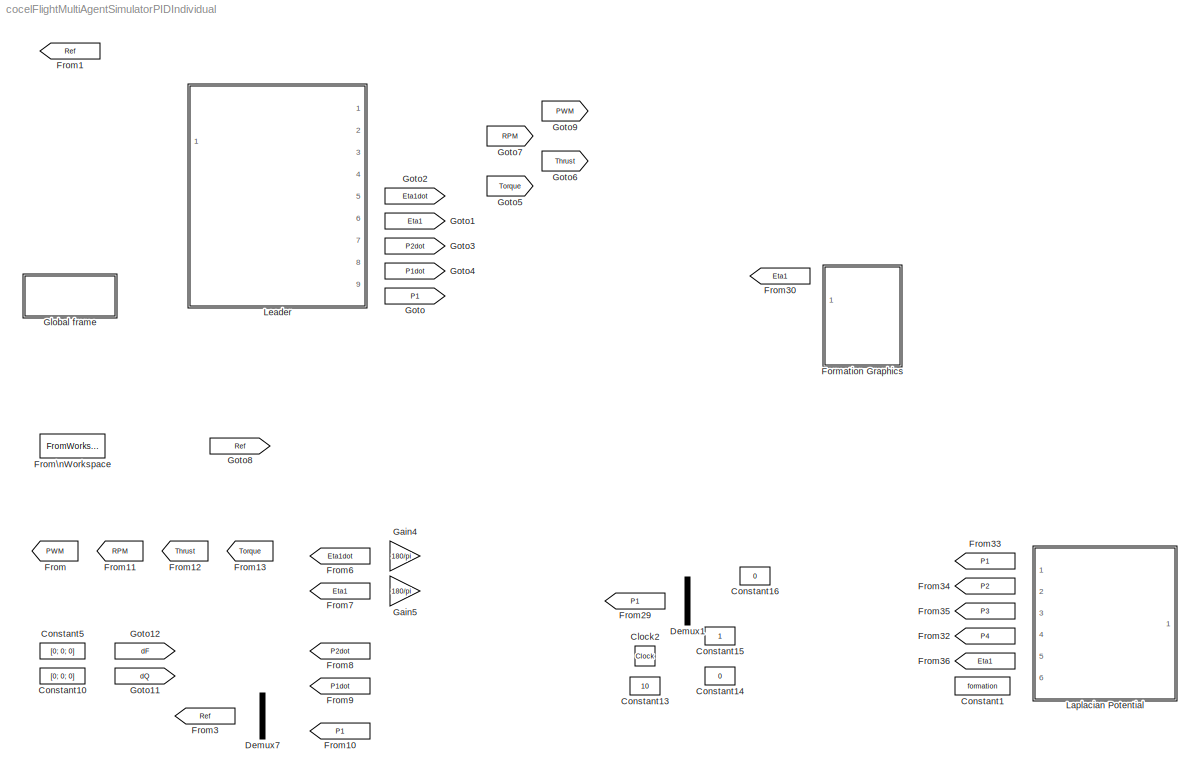
MODEL cocelFlightMultiAgentSimulatorPIDIndividual
KIND model
BLOCK [Clock] Clock2
  SID = 7185
BLOCK [Constant] Constant1
  SID = 9731
  Value = formation
BLOCK [Constant] Constant10
  SID = 2464
  Value = [0; 0; 0]
BLOCK [Constant] Constant13
  SID = 7186
  Value = 10
BLOCK [Constant] Constant14
  SID = 7187
  Value = 0
BLOCK [Constant] Constant15
  SID = 7188
BLOCK [Constant] Constant16
  SID = 7189
  Value = 0
BLOCK [Constant] Constant5
  SID = 2463
  Value = [0; 0; 0]
BLOCK [Demux] Demux1
  Outputs = 3
  Ports = [1, 3]
  SID = 7190
BLOCK [Demux] Demux7
  Ports = [1, 4]
  SID = 2465
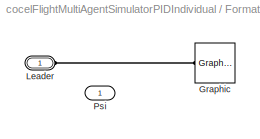
BLOCK [SubSystem] Formation Graphics
  Ports = [1, 0, 0, 0, 0, 1]
  RequestExecContextInheritance = off
  SID = 9703
BLOCK [Reference] Formation Graphics/Graphic  REF=sm_lib/Body Elements/Graphic
  GraphicAmbientColor = [0.15 0.15 0.15 1.0]
  GraphicAmbientColor_conf = compiletime
  GraphicDiffuseColor = [0.0 0.8 0.0]
  GraphicDiffuseColor_conf = compiletime
  GraphicEmissiveColor = [0.0 0.0 0.0 1.0]
  GraphicEmissiveColor_conf = compiletime
  GraphicOpacity = 0.5
  GraphicOpacity_conf = compiletime
  GraphicShininess = 75
  GraphicShininess_conf = compiletime
  GraphicSpecularColor = [0.5 0.5 0.5 1.0]
  GraphicSpecularColor_conf = compiletime
  GraphicType = Marker
  GraphicVisPropType = SimpleVisualProperties
  LogSimulationData = off
  MarkerShape = Sphere
  MarkerSize = 18
  MarkerSize_conf = compiletime
  NameLocation = top
  Ports = [0, 0, 0, 0, 0, 0, 1]
  SID = 9793
  SourceBlock = sm_lib/Body Elements/Graphic
  SourceProductBaseCode = MS
  SourceType = Graphic
BLOCK [PMIOPort] Formation Graphics/Leader
  SID = 9725
  Side = Left
BLOCK [Inport] Formation Graphics/Psi
  SID = 9704
BLOCK [From] From
  GotoTag = PWM
  NameLocation = left
  SID = 2007
BLOCK [From] From1
  GotoTag = Ref
  SID = 4326
BLOCK [From] From10
  GotoTag = P1
  SID = 428
BLOCK [From] From11
  GotoTag = RPM
  NameLocation = left
  SID = 2014
BLOCK [From] From12
  GotoTag = Thrust
  NameLocation = left
  SID = 2015
BLOCK [From] From13
  GotoTag = Torque
  NameLocation = left
  SID = 2016
BLOCK [From] From29
  GotoTag = P1
  SID = 7191
BLOCK [From] From3
  GotoTag = Ref
  SID = 3674
BLOCK [From] From30
  GotoTag = Eta1
  SID = 9729
BLOCK [From] From32
  GotoTag = P4
  SID = 9732
BLOCK [From] From33
  GotoTag = P1
  SID = 9733
BLOCK [From] From34
  GotoTag = P2
  SID = 9734
BLOCK [From] From35
  GotoTag = P3
  SID = 9735
BLOCK [From] From36
  GotoTag = Eta1
  SID = 9736
BLOCK [From] From6
  GotoTag = Eta1dot
  SID = 395
BLOCK [From] From7
  GotoTag = Eta1
  SID = 396
BLOCK [From] From8
  GotoTag = P2dot
  SID = 426
BLOCK [From] From9
  GotoTag = P1dot
  SID = 427
BLOCK [FromWorkspace] From\nWorkspace
  SID = 9743
  VariableName = filteredPath
BLOCK [Gain] Gain4
  Gain = 180/pi
  SID = 1258
BLOCK [Gain] Gain5
  Gain = 180/pi
  SID = 1259
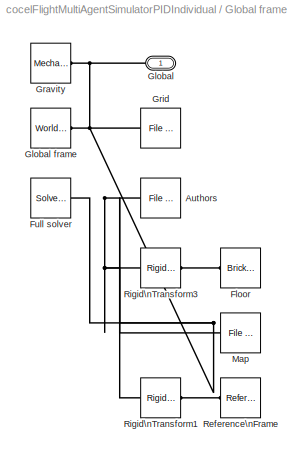
BLOCK [SubSystem] Global frame
  Ports = [0, 0, 0, 0, 0, 0, 1]
  RequestExecContextInheritance = off
  SID = 9296
BLOCK [Reference] Global frame/Authors  REF=sm_lib/Body Elements/File Solid
  BasedOnType = Density
  CenterOfMass = [0 0 0]
  CenterOfMassUnits = m
  CenterOfMass_conf = compiletime
  Density = 1000
  DensityUnits = kg/m^3
  Density_conf = compiletime
  DoExposeReferenceFrame = on
  ExportConvexHullGeometry = off
  ExtGeomFileName = graphics/Author.stl
  ExtGeomFileUnits = mm
  GraphicAmbientColor = [0.15 0.15 0.15 1.0]
  GraphicAmbientColor_conf = compiletime
  GraphicDiffuseColor = [0.8 0.0 0.4]
  GraphicDiffuseColor_conf = compiletime
  GraphicEmissiveColor = [0.0 0.0 0.0 1.0]
  GraphicEmissiveColor_conf = compiletime
  GraphicOpacity = 1.0
  GraphicOpacity_conf = compiletime
  GraphicShininess = 75
  GraphicShininess_conf = compiletime
  GraphicSpecularColor = [0.5 0.5 0.5 1.0]
  GraphicSpecularColor_conf = compiletime
  GraphicType = FromGeometry
  GraphicVisPropType = SimpleVisualProperties
  InertiaType = PointMass
  LogSimulationData = off
  MarkerShape = Sphere
  MarkerSize = 10
  MarkerSize_conf = compiletime
  Mass = 0
  MassUnits = kg
  Mass_conf = compiletime
  MomentsOfInertia = [0.001421219 0.001560811 0.002674212]
  MomentsOfInertiaUnits = kg*m^2
  MomentsOfInertia_conf = compiletime
  Ports = [0, 0, 0, 0, 0, 0, 1]
  ProductsOfInertia = [0 0 0]
  ProductsOfInertiaUnits = kg*m^2
  ProductsOfInertia_conf = compiletime
  SID = 9297
  SerializedFrames = <Frames/>
  SourceBlock = sm_lib/Body Elements/File Solid
  SourceProductBaseCode = MS
  SourceType = File Solid
  StepReaderType = HEX
  UnitType = Custom
BLOCK [Reference] Global frame/Floor  REF=sm_lib/Body Elements/Brick Solid
  BasedOnType = Density
  BrickDimensionUnits = m
  BrickDimensions = [60 60 0.01]
  BrickDimensions_conf = compiletime
  CenterOfMass = [0 0 0]
  CenterOfMassUnits = m
  CenterOfMass_conf = compiletime
  Density = 1000
  DensityUnits = kg/m^3
  Density_conf = compiletime
  DoExposeReferenceFrame = on
  ExportEntireGeometry = off
  GraphicAmbientColor = [0.15 0.15 0.15 1.0]
  GraphicAmbientColor_conf = compiletime
  GraphicDiffuseColor = [1.0 1.0 0.9]
  GraphicDiffuseColor_conf = compiletime
  GraphicEmissiveColor = [0.0 0.0 0.0 1.0]
  GraphicEmissiveColor_conf = compiletime
  GraphicOpacity = 1.0
  GraphicOpacity_conf = compiletime
  GraphicShininess = 75
  GraphicShininess_conf = compiletime
  GraphicSpecularColor = [0.5 0.5 0.5 1.0]
  GraphicSpecularColor_conf = compiletime
  GraphicType = FromGeometry
  GraphicVisPropType = SimpleVisualProperties
  InertiaType = PointMass
  LogSimulationData = off
  MarkerShape = Sphere
  MarkerSize = 10
  MarkerSize_conf = compiletime
  Mass = 0
  MassUnits = kg
  Mass_conf = compiletime
  MomentsOfInertia = [0.001421219 0.001560811 0.002674212]
  MomentsOfInertiaUnits = kg*m^2
  MomentsOfInertia_conf = compiletime
  Ports = [0, 0, 0, 0, 0, 0, 1]
  ProductsOfInertia = [0 0 0]
  ProductsOfInertiaUnits = kg*m^2
  ProductsOfInertia_conf = compiletime
  SID = 9298
  SerializedFrames = <Frames/>
  SourceBlock = sm_lib/Body Elements/Brick Solid
  SourceProductBaseCode = MS
  SourceType = Brick Solid
BLOCK [Reference] Global frame/Full solver  REF=nesl_utility/Solver\nConfiguration
  AbsTol = 1e-06
  AutomaticFiltering = on
  DelaysMemoryBudget = 1024
  DoDC = on
  DoFixedCost = off
  EnableSwitchedLinearOptims = on
  EquationFormulation = NE_TIME_EF
  FilteringTimeConstant = 0.001
  FrequencyDomain = off
  Harmonics = []
  LeftPortType = input
  LinearAlgebra = Full
  LocalSolverChoice = NE_BACKWARD_EULER_ADVANCER
  LocalSolverSampleTime = 0.001
  MaxModeIter = 2
  MaxNonlinIter = 3
  MinStep = 1e-09
  NumHomotopyIterations = 100
  PartitionMemoryBudget = 1024
  PartitionMethod = FAST
  PartitionStorageMethod = AS_NEEDED
  PhasorMode = off
  PhasorModeNumHarmonics = 1
  PhysicalDomain = network_engine_domain
  Ports = [0, 0, 0, 0, 0, 0, 1]
  Profile = off
  RTWMemSecDataConstants = Inherit from model
  RTWMemSecDataInternal = Inherit from model
  RTWMemSecDataParameters = Inherit from model
  RTWMemSecFuncExecute = Inherit from model
  RTWMemSecFuncInitTerm = Inherit from model
  RelTol = 0.001
  ResidualTolerance = 1e-09
  RevertToSquareIcSolve = off
  RightPortType = generic
  SID = 9299
  SimulateNoise = off
  SourceBlock = nesl_utility/Solver\nConfiguration
  SourceProductBaseCode = SS
  SourceType = Solver\nConfiguration
  SubClassName = solver
  ToWorkspace = off
  Tones = []
  UseCCode = off
  UseLocalSampling = off
  UseLocalSolver = off
BLOCK [PMIOPort] Global frame/Global
  SID = 9304
  Side = Right
BLOCK [Reference] Global frame/Global frame  REF=sm_lib/Frames and\nTransforms/World Frame
  LogSimulationData = off
  Ports = [0, 0, 0, 0, 0, 0, 1]
  SID = 9300
  SourceBlock = sm_lib/Frames and\nTransforms/World Frame
  SourceProductBaseCode = MS
  SourceType = World Frame
BLOCK [Reference] Global frame/Gravity  REF=sm_lib/Utilities/Mechanism\nConfiguration
  GravityUnits = m/s^2
  GravityVector = [0 0 -9.81]
  GravityVector_conf = compiletime
  LinearizationDelta = 0.001
  LogSimulationData = off
  Ports = [0, 0, 0, 0, 0, 0, 1]
  SID = 9301
  SourceBlock = sm_lib/Utilities/Mechanism\nConfiguration
  SourceProductBaseCode = MS
  SourceType = Mechanism\nConfiguration
  UniformGravity = Constant
BLOCK [Reference] Global frame/Grid  REF=sm_lib/Body Elements/File Solid
  BasedOnType = Density
  CenterOfMass = [0 0 0]
  CenterOfMassUnits = m
  CenterOfMass_conf = compiletime
  Density = 1000
  DensityUnits = kg/m^3
  Density_conf = compiletime
  DoExposeReferenceFrame = on
  ExportConvexHullGeometry = off
  ExtGeomFileName = graphics/Grid.stl
  ExtGeomFileUnits = mm
  GraphicAmbientColor = [0.15 0.15 0.15 1.0]
  GraphicAmbientColor_conf = compiletime
  GraphicDiffuseColor = [0.8 1.0 0.8]
  GraphicDiffuseColor_conf = compiletime
  GraphicEmissiveColor = [0.0 0.0 0.0 1.0]
  GraphicEmissiveColor_conf = compiletime
  GraphicOpacity = 1.0
  GraphicOpacity_conf = compiletime
  GraphicShininess = 75
  GraphicShininess_conf = compiletime
  GraphicSpecularColor = [0.5 0.5 0.5 1.0]
  GraphicSpecularColor_conf = compiletime
  GraphicType = FromGeometry
  GraphicVisPropType = SimpleVisualProperties
  InertiaType = PointMass
  LogSimulationData = off
  MarkerShape = Sphere
  MarkerSize = 10
  MarkerSize_conf = compiletime
  Mass = 0
  MassUnits = kg
  Mass_conf = compiletime
  MomentsOfInertia = [0.001421219 0.001560811 0.002674212]
  MomentsOfInertiaUnits = kg*m^2
  MomentsOfInertia_conf = compiletime
  Ports = [0, 0, 0, 0, 0, 0, 1]
  ProductsOfInertia = [0 0 0]
  ProductsOfInertiaUnits = kg*m^2
  ProductsOfInertia_conf = compiletime
  SID = 9302
  SerializedFrames = <Frames/>
  SourceBlock = sm_lib/Body Elements/File Solid
  SourceProductBaseCode = MS
  SourceType = File Solid
  StepReaderType = HEX
  UnitType = Custom
BLOCK [Reference] Global frame/Map  REF=sm_lib/Body Elements/File Solid
  BasedOnType = Density
  CenterOfMass = [0 0 0]
  CenterOfMassUnits = m
  CenterOfMass_conf = compiletime
  Density = 1000
  DensityUnits = kg/m^3
  Density_conf = compiletime
  DoExposeReferenceFrame = on
  ExportConvexHullGeometry = off
  ExtGeomFileName = graphics/Map.stl
  ExtGeomFileUnits = m
  GraphicAmbientColor = [0.15 0.15 0.15 1.0]
  GraphicAmbientColor_conf = compiletime
  GraphicDiffuseColor = [0.2 0.8 1.0]
  GraphicDiffuseColor_conf = compiletime
  GraphicEmissiveColor = [0.0 0.0 0.0 1.0]
  GraphicEmissiveColor_conf = compiletime
  GraphicOpacity = 0.8
  GraphicOpacity_conf = compiletime
  GraphicShininess = 75
  GraphicShininess_conf = compiletime
  GraphicSpecularColor = [0.5 0.5 0.5 1.0]
  GraphicSpecularColor_conf = compiletime
  GraphicType = FromGeometry
  GraphicVisPropType = SimpleVisualProperties
  InertiaType = PointMass
  LogSimulationData = off
  MarkerShape = Sphere
  MarkerSize = 10
  MarkerSize_conf = compiletime
  Mass = 0
  MassUnits = kg
  Mass_conf = compiletime
  MomentsOfInertia = [0.001421219 0.001560811 0.002674212]
  MomentsOfInertiaUnits = kg*m^2
  MomentsOfInertia_conf = compiletime
  Ports = [0, 0, 0, 0, 0, 0, 1]
  ProductsOfInertia = [0 0 0]
  ProductsOfInertiaUnits = kg*m^2
  ProductsOfInertia_conf = compiletime
  SID = 9794
  SerializedFrames = <Frames/>
  SourceBlock = sm_lib/Body Elements/File Solid
  SourceProductBaseCode = MS
  SourceType = File Solid
  StepReaderType = HEX
  UnitType = Custom
BLOCK [Reference] Global frame/Reference\nFrame  REF=sm_lib/Frames and\nTransforms/Reference\nFrame
  LogSimulationData = off
  Ports = [0, 0, 0, 0, 0, 0, 1]
  SID = 9796
  SourceBlock = sm_lib/Frames and\nTransforms/Reference\nFrame
  SourceProductBaseCode = MS
  SourceType = Reference\nFrame
BLOCK [Reference] Global frame/Rigid\nTransform1  REF=sm_lib/Frames and\nTransforms/Rigid\nTransform
  BaseAlignAxisA = +Y
  BaseAlignAxisB = +Z
  FollAlignAxisA = +X
  FollAlignAxisB = +Y
  LogSimulationData = off
  Ports = [0, 0, 0, 0, 0, 1, 1]
  RotationAngle = 0.0
  RotationAngleUnits = deg
  RotationAngle_conf = compiletime
  RotationArbitraryAxis = [0 0 1]
  RotationArbitraryAxis_conf = compiletime
  RotationMatrix = [1 0 0; 0 1 0; 0 0 1]
  RotationMatrix_conf = compiletime
  RotationMethod = None
  RotationSequence = XYX
  RotationSequenceAngles = [0 0 0]
  RotationSequenceAnglesUnits = deg
  RotationSequenceAngles_conf = compiletime
  RotationSequenceAxes = FollowerAxes
  RotationStandardAxis = +Z
  SID = 9795
  SourceBlock = sm_lib/Frames and\nTransforms/Rigid\nTransform
  SourceProductBaseCode = MS
  SourceType = Rigid\nTransform
  TranslationCartesianOffset = filteredPath(end-1,2:4) + [0 0 14]
  TranslationCartesianOffset_conf = compiletime
  TranslationLengthUnit = m
  TranslationMethod = Cartesian
  TranslationROffset = 0
  TranslationROffsetUnits = m
  TranslationROffset_conf = compiletime
  TranslationStandardAxis = +Z
  TranslationStandardOffset = 0
  TranslationStandardOffset_conf = compiletime
  TranslationThetaOffset = 0
  TranslationThetaOffsetUnits = deg
  TranslationThetaOffset_conf = compiletime
  TranslationZOffset = 0
  TranslationZOffsetUnits = m
  TranslationZOffset_conf = compiletime
BLOCK [Reference] Global frame/Rigid\nTransform3  REF=sm_lib/Frames and\nTransforms/Rigid\nTransform
  BaseAlignAxisA = +Y
  BaseAlignAxisB = +Z
  FollAlignAxisA = +X
  FollAlignAxisB = +Y
  LogSimulationData = off
  Ports = [0, 0, 0, 0, 0, 1, 1]
  RotationAngle = 0.0
  RotationAngleUnits = deg
  RotationAngle_conf = compiletime
  RotationArbitraryAxis = [0 0 1]
  RotationArbitraryAxis_conf = compiletime
  RotationMatrix = [1 0 0; 0 1 0; 0 0 1]
  RotationMatrix_conf = compiletime
  RotationMethod = None
  RotationSequence = XYX
  RotationSequenceAngles = [0 0 0]
  RotationSequenceAnglesUnits = deg
  RotationSequenceAngles_conf = compiletime
  RotationSequenceAxes = FollowerAxes
  RotationStandardAxis = +Z
  SID = 9303
  SourceBlock = sm_lib/Frames and\nTransforms/Rigid\nTransform
  SourceProductBaseCode = MS
  SourceType = Rigid\nTransform
  TranslationCartesianOffset = [0 0 -0.06]
  TranslationCartesianOffset_conf = compiletime
  TranslationLengthUnit = m
  TranslationMethod = Cartesian
  TranslationROffset = 0
  TranslationROffsetUnits = m
  TranslationROffset_conf = compiletime
  TranslationStandardAxis = +Z
  TranslationStandardOffset = 0
  TranslationStandardOffset_conf = compiletime
  TranslationThetaOffset = 0
  TranslationThetaOffsetUnits = deg
  TranslationThetaOffset_conf = compiletime
  TranslationZOffset = 0
  TranslationZOffsetUnits = m
  TranslationZOffset_conf = compiletime
BLOCK [Goto] Goto
  GotoTag = P1
  SID = 9286
BLOCK [Goto] Goto1
  GotoTag = Eta1
  SID = 9730
BLOCK [Goto] Goto11
  GotoTag = dQ
  SID = 2461
BLOCK [Goto] Goto12
  GotoTag = dF
  SID = 2462
BLOCK [Goto] Goto2
  GotoTag = Eta1dot
  SID = 9781
BLOCK [Goto] Goto3
  GotoTag = P2dot
  SID = 9782
BLOCK [Goto] Goto4
  GotoTag = P1dot
  SID = 9783
BLOCK [Goto] Goto5
  GotoTag = Torque
  NameLocation = left
  SID = 9785
BLOCK [Goto] Goto6
  GotoTag = Thrust
  NameLocation = left
  SID = 9786
BLOCK [Goto] Goto7
  GotoTag = RPM
  NameLocation = left
  SID = 9787
BLOCK [Goto] Goto8
  GotoTag = Ref
  SID = 9744
BLOCK [Goto] Goto9
  GotoTag = PWM
  NameLocation = left
  SID = 9788
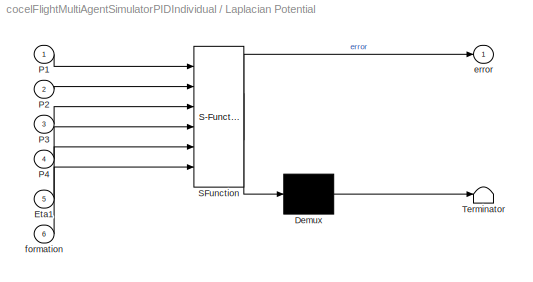
BLOCK [SubSystem] Laplacian Potential
  ErrorFcn = Stateflow.Translate.translate
  PermitHierarchicalResolution = ExplicitOnly
  Ports = [6, 1]
  RequestExecContextInheritance = off
  SFBlockType = MATLAB Function
  SID = 9737
  TreatAsAtomicUnit = on
BLOCK [Demux] Laplacian Potential/ Demux 
  Outputs = 1
  Ports = [1, 1]
  SID = 9737::54
BLOCK [S-Function] Laplacian Potential/ SFunction 
  EnableBusSupport = on
  FunctionName = sf_sfun
  PortCounts = [6 2]
  Ports = [6, 2]
  SFcnIsStateOwnerBlock = off
  SFunctionDeploymentMode = off
  SID = 9737::53
  Tag = Stateflow S-Function 30
BLOCK [Terminator] Laplacian Potential/ Terminator 
  SID = 9737::55
BLOCK [Inport] Laplacian Potential/Eta1
  Port = 5
  SID = 9737::39
BLOCK [Inport] Laplacian Potential/P1
  SID = 9737::24
BLOCK [Inport] Laplacian Potential/P2
  Port = 2
  SID = 9737::36
BLOCK [Inport] Laplacian Potential/P3
  Port = 3
  SID = 9737::37
BLOCK [Inport] Laplacian Potential/P4
  Port = 4
  SID = 9737::38
BLOCK [Outport] Laplacian Potential/error
  SID = 9737::23
BLOCK [Inport] Laplacian Potential/formation
  Port = 6
  SID = 9737::51
BLOCK [SubSystem] Leader
  Ports = [1, 9, 0, 0, 0, 2]
  RequestExecContextInheritance = off
  SID = 7197
LINE Laplacian Potential/ Demux :1 -> Laplacian Potential/ Terminator :1
LINE Laplacian Potential/ SFunction :1 -> Laplacian Potential/ Demux :1
LINE Laplacian Potential/ SFunction :2 -> Laplacian Potential/error:1
LINE Laplacian Potential/Eta1:1 -> Laplacian Potential/ SFunction :5
LINE Laplacian Potential/P1:1 -> Laplacian Potential/ SFunction :1
LINE Laplacian Potential/P2:1 -> Laplacian Potential/ SFunction :2
LINE Laplacian Potential/P3:1 -> Laplacian Potential/ SFunction :3
LINE Laplacian Potential/P4:1 -> Laplacian Potential/ SFunction :4
LINE Laplacian Potential/formation:1 -> Laplacian Potential/ SFunction :6
PLINE Formation Graphics/Graphic:RConn1 -- Formation Graphics/Leader:RConn1
PNET net1: Global frame/Authors:RConn1 -- Global frame/Full solver:RConn1 -- Global frame/Global frame:RConn1 -- Global frame/Global:RConn1 -- Global frame/Gravity:RConn1 -- Global frame/Grid:RConn1 -- Global frame/Map:RConn1 -- Global frame/Rigid\nTransform1:LConn1 -- Global frame/Rigid\nTransform3:LConn1
PLINE Global frame/Floor:RConn1 -- Global frame/Rigid\nTransform3:RConn1
PLINE Global frame/Reference\nFrame:RConn1 -- Global frame/Rigid\nTransform1:RConn1
note: PNET lines group multi-terminal physical nets as a canonical sorted terminal list (undirected conserving connections); 2-terminal nets keep the pairwise PLINE form
